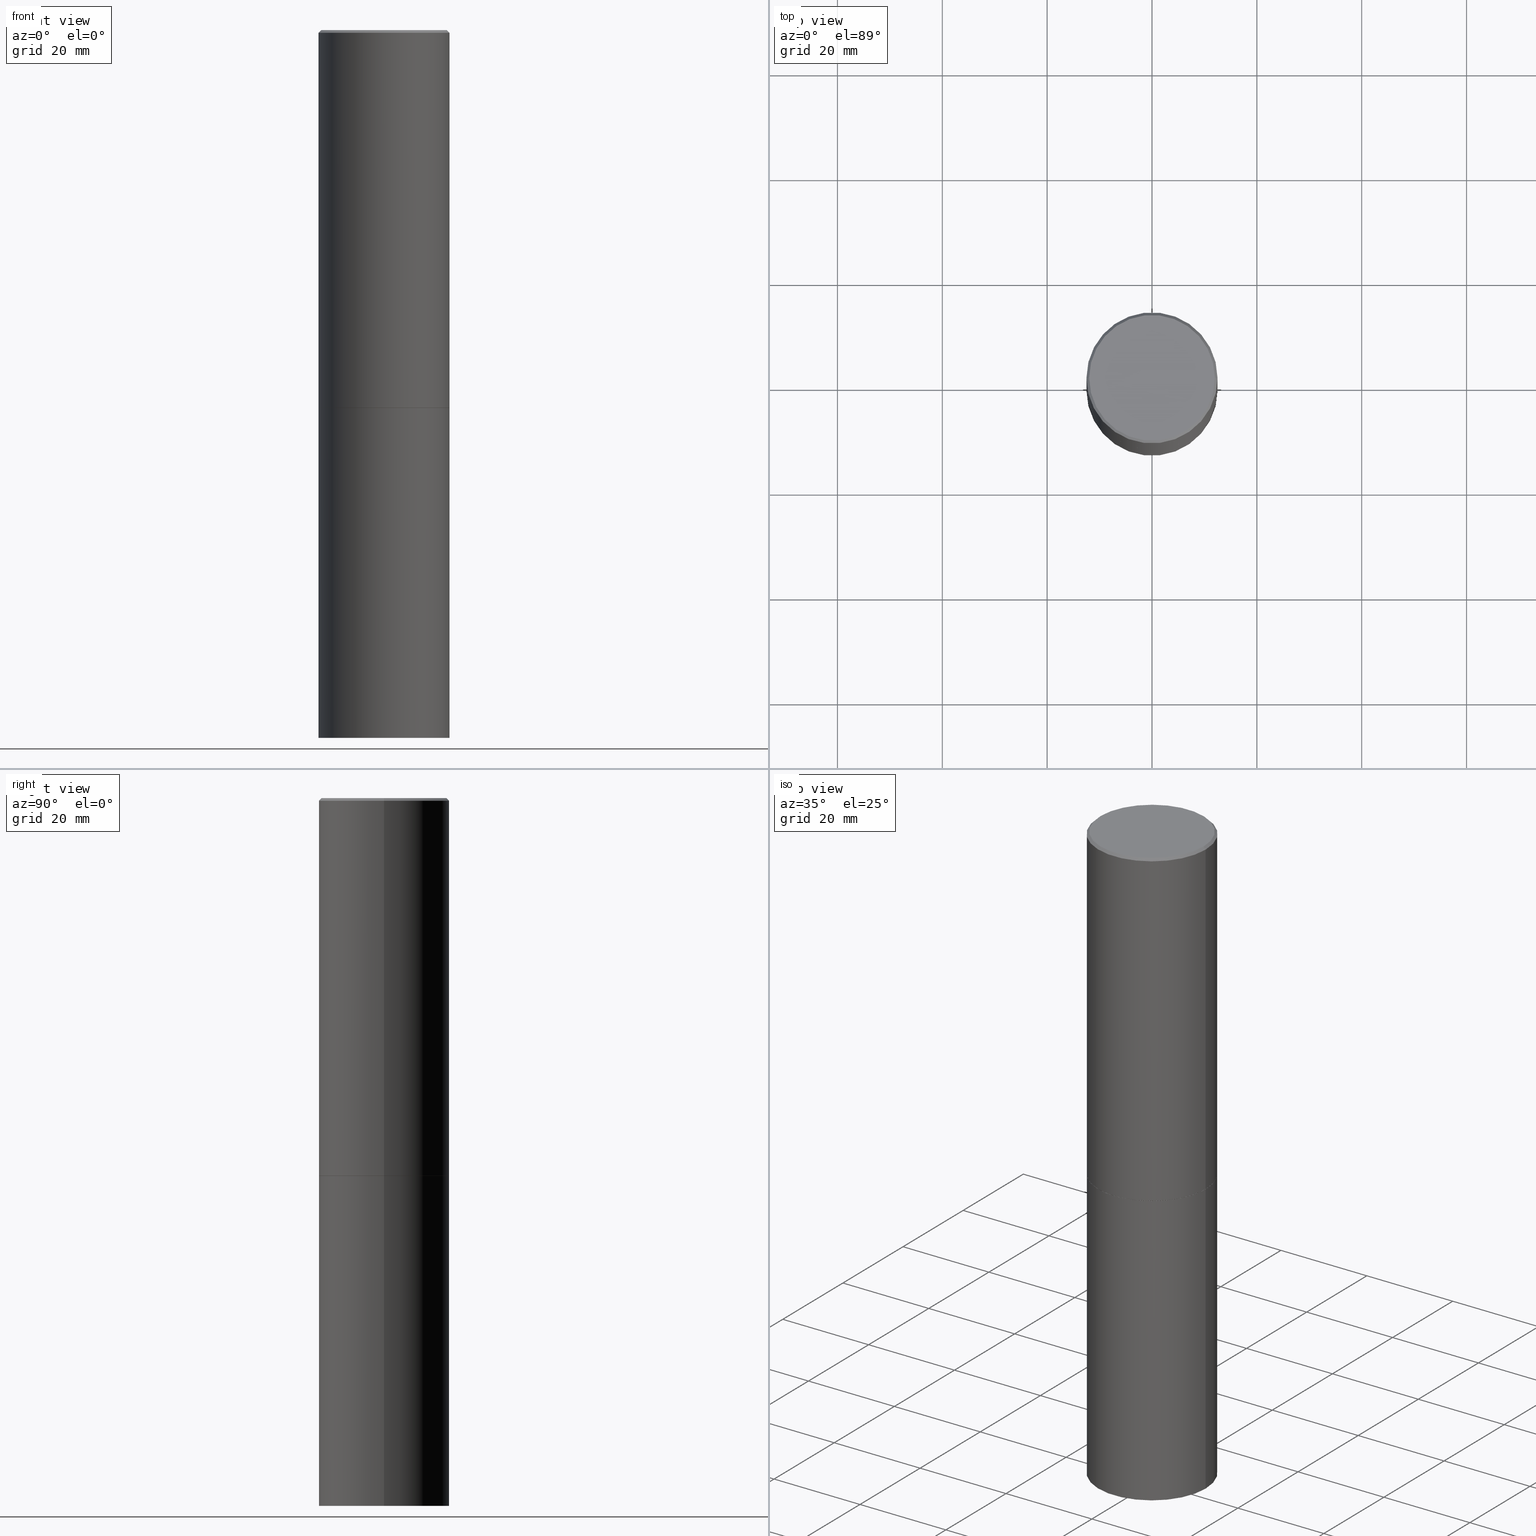
[diagram: canonical four-view strip — front | top / right | iso, engineering-drawing reading convention]
A machine part, canonical four-view strip (front | top / right | iso — engineering-drawing reading convention). The complete STEP part file that produces these views, byte-faithful:
ISO-10303-21;
HEADER;
FILE_DESCRIPTION (( 'STEP AP203' ),
    '1' );
FILE_NAME ('74864.STEP',
    '2024-05-03T15:04:18',
    ( '' ),
    ( '' ),
    'SwSTEP 2.0',
    'SolidWorks 2023',
    '' );
FILE_SCHEMA (( 'CONFIG_CONTROL_DESIGN' ));
ENDSEC;

DATA;
#1 = DIRECTION ( 'NONE',  ( 1.000000000000000000, -6.982962677686268288E-15, 0.000000000000000000 ) ) ;
#2 = VECTOR ( 'NONE', #210, 39.37007874015748143 ) ;
#3 = APPROVAL_STATUS ( 'not_yet_approved' ) ;
#4 = ORIENTED_EDGE ( 'NONE', *, *, #84, .F. ) ;
#5 = EDGE_CURVE ( 'NONE', #151, #324, #256, .T. ) ;
#6 = ORIENTED_EDGE ( 'NONE', *, *, #252, .F. ) ;
#7 = CIRCLE ( 'NONE', #221, 0.4921499999999999764 ) ;
#8 = LOCAL_TIME ( 11, 4, 18.00000000000000000, #283 ) ;
#9 = CARTESIAN_POINT ( 'NONE',  ( -0.4921499999999999764, -1.073032665954166075E-14, -5.315000000000000391 ) ) ;
#10 = APPROVAL_ROLE ( '' ) ;
#11 = DIRECTION ( 'NONE',  ( 1.000000000000000000, -6.982962677686265922E-15, 0.000000000000000000 ) ) ;
#12 = DIRECTION ( 'NONE',  ( -1.000000000000000000, 6.982962677686265922E-15, -4.876176775795935793E-29 ) ) ;
#13 = VERTEX_POINT ( 'NONE', #166 ) ;
#14 = CIRCLE ( 'NONE', #59, 0.4911499999999999755 ) ;
#15 = CC_DESIGN_APPROVAL ( #144, ( #76 ) ) ;
#16 = DIMENSIONAL_EXPONENTS ( 1.000000000000000000, 0.000000000000000000, 0.000000000000000000, 0.000000000000000000, 0.000000000000000000, 0.000000000000000000, 0.000000000000000000 ) ;
#17 = EDGE_CURVE ( 'NONE', #19, #57, #228, .T. ) ;
#18 = DIRECTION ( 'NONE',  ( -2.445468806185136597E-29, 3.491481338843145583E-15, 1.000000000000000000 ) ) ;
#19 = VERTEX_POINT ( 'NONE', #197 ) ;
#20 =( LENGTH_UNIT ( ) NAMED_UNIT ( * ) SI_UNIT ( $, .METRE. ) );
#21 = ORIENTED_EDGE ( 'NONE', *, *, #237, .F. ) ;
#22 = VECTOR ( 'NONE', #207, 39.37007874015748143 ) ;
#23 = DIRECTION ( 'NONE',  ( 1.000000000000000000, -6.982962677686265922E-15, 4.876176775795935793E-29 ) ) ;
#24 = CYLINDRICAL_SURFACE ( 'NONE', #138, 0.4921499999999999764 ) ;
#25 = ORIENTED_EDGE ( 'NONE', *, *, #360, .F. ) ;
#26 = FACE_OUTER_BOUND ( 'NONE', #290, .T. ) ;
#27 = PERSON_AND_ORGANIZATION_ROLE ( 'design_supplier' ) ;
#28 = CLOSED_SHELL ( 'NONE', ( #194, #202, #278, #97, #131, #301, #294, #168 ) ) ;
#29 = CC_DESIGN_APPROVAL ( #115, ( #48 ) ) ;
#30 = CC_DESIGN_DATE_AND_TIME_ASSIGNMENT ( #165, #302, ( #48 ) ) ;
#31 = CARTESIAN_POINT ( 'NONE',  ( -0.4911499999999999755, -6.402173050184711684E-15, -2.834699999999999775 ) ) ;
#32 = PERSON_AND_ORGANIZATION_ROLE ( 'design_owner' ) ;
#33 = CARTESIAN_POINT ( 'NONE',  ( 6.932170424893005181E-29, -9.897302151218664397E-15, -2.834699999999999775 ) ) ;
#34 = PERSON_AND_ORGANIZATION_ROLE ( 'creator' ) ;
#35 = EDGE_CURVE ( 'NONE', #253, #324, #167, .T. ) ;
#36 = VERTEX_POINT ( 'NONE', #87 ) ;
#37 = VECTOR ( 'NONE', #116, 39.37007874015748143 ) ;
#38 = CALENDAR_DATE ( 2024, 3, 5 ) ;
#39 = ORIENTED_EDGE ( 'NONE', *, *, #61, .F. ) ;
#40 = CALENDAR_DATE ( 2024, 3, 5 ) ;
#41 = FACE_OUTER_BOUND ( 'NONE', #242, .T. ) ;
#42 = DIRECTION ( 'NONE',  ( 1.000000000000000000, -6.982962677686265922E-15, 4.876176775795935793E-29 ) ) ;
#43 = ORIENTED_EDGE ( 'NONE', *, *, #360, .T. ) ;
#44 = FACE_OUTER_BOUND ( 'NONE', #55, .T. ) ;
#45 = CIRCLE ( 'NONE', #170, 0.4921499999999999764 ) ;
#46 = DIRECTION ( 'NONE',  ( 1.000000000000000000, -6.982962677686265922E-15, 4.876176775795935793E-29 ) ) ;
#47 = LOCAL_TIME ( 11, 4, 18.00000000000000000, #66 ) ;
#48 = PRODUCT_DEFINITION ( 'UNKNOWN', '', #76, #206 ) ;
#49 = DIRECTION ( 'NONE',  ( -1.000000000000000000, 6.982962677686265922E-15, -4.876176775795935793E-29 ) ) ;
#50 = ORIENTED_EDGE ( 'NONE', *, *, #119, .F. ) ;
#51 = FACE_OUTER_BOUND ( 'NONE', #154, .T. ) ;
#52 = EDGE_CURVE ( 'NONE', #236, #253, #229, .T. ) ;
#53 =( NAMED_UNIT ( * ) SI_UNIT ( $, .STERADIAN. ) SOLID_ANGLE_UNIT ( ) );
#54 = CIRCLE ( 'NONE', #200, 0.4921499999999999764 ) ;
#55 = EDGE_LOOP ( 'NONE', ( #6, #271, #354, #77 ) ) ;
#56 =( CONVERSION_BASED_UNIT ( 'INCH', #319 ) LENGTH_UNIT ( ) NAMED_UNIT ( #16 ) );
#57 = VERTEX_POINT ( 'NONE', #9 ) ;
#58 = EDGE_CURVE ( 'NONE', #331, #71, #312, .T. ) ;
#59 = AXIS2_PLACEMENT_3D ( 'NONE', #247, #188, #298 ) ;
#60 = DIRECTION ( 'NONE',  ( 1.000000000000000000, -6.982962677686265922E-15, 4.876006802227162976E-29 ) ) ;
#61 = EDGE_CURVE ( 'NONE', #324, #253, #95, .T. ) ;
#62 = PERSON_AND_ORGANIZATION ( #322, #186 ) ;
#63 = CARTESIAN_POINT ( 'NONE',  ( 4.890937612370296805E-31, -6.982962677686323656E-17, -0.02000000000000009409 ) ) ;
#64 = VECTOR ( 'NONE', #169, 39.37007874015748143 ) ;
#65 = ORIENTED_EDGE ( 'NONE', *, *, #158, .T. ) ;
#66 = COORDINATED_UNIVERSAL_TIME_OFFSET ( 5, 0, .BEHIND. ) ;
#67 = CC_DESIGN_DATE_AND_TIME_ASSIGNMENT ( #288, #260, ( #315 ) ) ;
#68 = DIRECTION ( 'NONE',  ( -2.445468806185136877E-29, 3.491481338843145188E-15, 1.000000000000000000 ) ) ;
#69 = APPROVAL_DATE_TIME ( #117, #239 ) ;
#70 = CARTESIAN_POINT ( 'NONE',  ( 0.4921499999999996988, -3.446223716380120377E-15, -0.02000000000000009409 ) ) ;
#71 = VERTEX_POINT ( 'NONE', #203 ) ;
#72 = DIRECTION ( 'NONE',  ( 2.445468806185136597E-29, -3.491481338843145583E-15, -1.000000000000000000 ) ) ;
#73 = EDGE_LOOP ( 'NONE', ( #4, #218, #274, #262 ) ) ;
#74 = ORIENTED_EDGE ( 'NONE', *, *, #198, .T. ) ;
#75 = AXIS2_PLACEMENT_3D ( 'NONE', #295, #326, #124 ) ;
#76 = PRODUCT_DEFINITION_FORMATION_WITH_SPECIFIED_SOURCE ( 'ANY', '', #172, .NOT_KNOWN. ) ;
#77 = ORIENTED_EDGE ( 'NONE', *, *, #61, .T. ) ;
#78 = DIRECTION ( 'NONE',  ( -2.445468806185136877E-29, 3.491481338843145188E-15, 1.000000000000000000 ) ) ;
#79 = ORIENTED_EDGE ( 'NONE', *, *, #5, .F. ) ;
#80 = DIRECTION ( 'NONE',  ( -2.445468806185136597E-29, 3.491481338843145583E-15, 1.000000000000000000 ) ) ;
#81 = EDGE_LOOP ( 'NONE', ( #209, #121, #292, #343 ) ) ;
#82 = DIRECTION ( 'NONE',  ( -2.445468806185136597E-29, 3.491481338843145583E-15, 1.000000000000000000 ) ) ;
#83 = ORIENTED_EDGE ( 'NONE', *, *, #52, .F. ) ;
#84 = EDGE_CURVE ( 'NONE', #57, #36, #171, .T. ) ;
#85 = DIRECTION ( 'NONE',  ( -2.445468806185136597E-29, 3.491481338843145583E-15, 1.000000000000000000 ) ) ;
#86 = AXIS2_PLACEMENT_3D ( 'NONE', #175, #267, #60 ) ;
#87 = CARTESIAN_POINT ( 'NONE',  ( -0.4921499999999999764, -1.073032665954166075E-14, -2.834700000000000220 ) ) ;
#88 = DATE_AND_TIME ( #105, #96 ) ;
#89 = AXIS2_PLACEMENT_3D ( 'NONE', #63, #142, #347 ) ;
#90 = CARTESIAN_POINT ( 'NONE',  ( 1.299766670487400218E-28, -1.855722331595131973E-14, -5.315000000000000391 ) ) ;
#91 = ORIENTED_EDGE ( 'NONE', *, *, #306, .F. ) ;
#92 = CC_DESIGN_PERSON_AND_ORGANIZATION_ASSIGNMENT ( #62, #34, ( #76 ) ) ;
#93 = DIRECTION ( 'NONE',  ( 1.000000000000000000, -6.982962677686265922E-15, 0.000000000000000000 ) ) ;
#94 = APPROVAL_STATUS ( 'not_yet_approved' ) ;
#95 = CIRCLE ( 'NONE', #268, 0.4921499999999996988 ) ;
#96 = LOCAL_TIME ( 11, 4, 18.00000000000000000, #112 ) ;
#97 = ADVANCED_FACE ( 'NONE', ( #44 ), #191, .T. ) ;
#98 = CARTESIAN_POINT ( 'NONE',  ( 3.297005828269567997E-15, 0.4721499999999996255, -1.644234401644689488E-15 ) ) ;
#99 = DIRECTION ( 'NONE',  ( 2.438088387897960049E-29, -3.491481338843145188E-15, -1.000000000000000000 ) ) ;
#100 = CARTESIAN_POINT ( 'NONE',  ( 6.932170424893007423E-29, -9.897302151218665974E-15, -2.834700000000000220 ) ) ;
#101 = CIRCLE ( 'NONE', #86, 0.4721499999999996255 ) ;
#102 = AXIS2_PLACEMENT_3D ( 'NONE', #305, #342, #11 ) ;
#103 = DIRECTION ( 'NONE',  ( -2.445468806185136597E-29, 3.491481338843145583E-15, 1.000000000000000000 ) ) ;
#104 = LINE ( 'NONE', #353, #113 ) ;
#105 = CALENDAR_DATE ( 2024, 3, 5 ) ;
#106 = CC_DESIGN_PERSON_AND_ORGANIZATION_ASSIGNMENT ( #136, #32, ( #172 ) ) ;
#107 = PERSON_AND_ORGANIZATION_ROLE ( 'classification_officer' ) ;
#108 = DIRECTION ( 'NONE',  ( 1.000000000000000000, -6.982962677686268288E-15, 0.000000000000000000 ) ) ;
#109 = EDGE_CURVE ( 'NONE', #36, #182, #45, .T. ) ;
#110 = AXIS2_PLACEMENT_3D ( 'NONE', #332, #80, #366 ) ;
#111 = FACE_OUTER_BOUND ( 'NONE', #73, .T. ) ;
#112 = COORDINATED_UNIVERSAL_TIME_OFFSET ( 5, 0, .BEHIND. ) ;
#113 = VECTOR ( 'NONE', #235, 39.37007874015748143 ) ;
#114 = CARTESIAN_POINT ( 'NONE',  ( -0.4921499999999996988, 3.366835455046430506E-15, -0.02000000000000009409 ) ) ;
#115 = APPROVAL ( #192, 'UNSPECIFIED' ) ;
#116 = DIRECTION ( 'NONE',  ( -0.7071067811870063169, 7.493145998872012346E-15, 0.7071067811860887176 ) ) ;
#117 = DATE_AND_TIME ( #40, #8 ) ;
#118 = FACE_OUTER_BOUND ( 'NONE', #150, .T. ) ;
#119 = EDGE_CURVE ( 'NONE', #71, #236, #54, .T. ) ;
#120 = AXIS2_PLACEMENT_3D ( 'NONE', #309, #143, #259 ) ;
#121 = ORIENTED_EDGE ( 'NONE', *, *, #84, .T. ) ;
#122 = CYLINDRICAL_SURFACE ( 'NONE', #234, 0.4921499999999998098 ) ;
#123 = FACE_OUTER_BOUND ( 'NONE', #276, .T. ) ;
#124 = DIRECTION ( 'NONE',  ( 1.000000000000000000, -6.982962677686265922E-15, 4.876006802227162976E-29 ) ) ;
#125 = AXIS2_PLACEMENT_3D ( 'NONE', #137, #208, #264 ) ;
#126 = CC_DESIGN_PERSON_AND_ORGANIZATION_ASSIGNMENT ( #365, #107, ( #315 ) ) ;
#127 = ORIENTED_EDGE ( 'NONE', *, *, #109, .T. ) ;
#128 = APPLICATION_PROTOCOL_DEFINITION ( 'international standard', 'config_control_design', 1994, #345 ) ;
#129 = ORIENTED_EDGE ( 'NONE', *, *, #181, .T. ) ;
#130 = DIRECTION ( 'NONE',  ( 1.000000000000000000, -6.982962677686268288E-15, 0.000000000000000000 ) ) ;
#131 = ADVANCED_FACE ( 'NONE', ( #123 ), #122, .T. ) ;
#132 = CARTESIAN_POINT ( 'NONE',  ( 3.436665081823425939E-15, 0.4921499999999813801, -5.315000000000003055 ) ) ;
#133 = CONICAL_SURFACE ( 'NONE', #338, 0.4911499999999999755, 0.7853981633980972044 ) ;
#134 = CARTESIAN_POINT ( 'NONE',  ( 6.932170424893005181E-29, -9.897302151218664397E-15, -2.834699999999999775 ) ) ;
#135 = FACE_OUTER_BOUND ( 'NONE', #81, .T. ) ;
#136 = PERSON_AND_ORGANIZATION ( #322, #186 ) ;
#137 = CARTESIAN_POINT ( 'NONE',  ( 3.436665081823365196E-15, 0.4921499999999900399, -2.834700000000001996 ) ) ;
#138 = AXIS2_PLACEMENT_3D ( 'NONE', #254, #82, #23 ) ;
#139 = LOCAL_TIME ( 11, 4, 18.00000000000000000, #310 ) ;
#140 = DIRECTION ( 'NONE',  ( -2.445468806185136597E-29, 3.491481338843145583E-15, 1.000000000000000000 ) ) ;
#141 = PERSON_AND_ORGANIZATION ( #322, #186 ) ;
#142 = DIRECTION ( 'NONE',  ( 2.445468806185136597E-29, -3.491481338843145583E-15, -1.000000000000000000 ) ) ;
#143 = DIRECTION ( 'NONE',  ( -2.445468806185136597E-29, 3.491481338843145583E-15, 1.000000000000000000 ) ) ;
#144 = APPROVAL ( #3, 'UNSPECIFIED' ) ;
#145 = AXIS2_PLACEMENT_3D ( 'NONE', #321, #72, #318 ) ;
#146 = EDGE_LOOP ( 'NONE', ( #65, #328 ) ) ;
#147 = DIRECTION ( 'NONE',  ( -2.445468806185136597E-29, 3.491481338843145583E-15, 1.000000000000000000 ) ) ;
#148 = EDGE_CURVE ( 'NONE', #19, #182, #355, .T. ) ;
#149 = ORIENTED_EDGE ( 'NONE', *, *, #306, .T. ) ;
#150 = EDGE_LOOP ( 'NONE', ( #74, #127 ) ) ;
#151 = VERTEX_POINT ( 'NONE', #178 ) ;
#152 = CC_DESIGN_PERSON_AND_ORGANIZATION_ASSIGNMENT ( #341, #215, ( #48 ) ) ;
#153 = CARTESIAN_POINT ( 'NONE',  ( 6.929724956086824062E-29, -9.893810669879824545E-15, -2.833700000000000774 ) ) ;
#154 = EDGE_LOOP ( 'NONE', ( #149, #43, #361, #83 ) ) ;
#155 = CYLINDRICAL_SURFACE ( 'NONE', #273, 0.4921499999999999764 ) ;
#156 = DIRECTION ( 'NONE',  ( 1.000000000000000000, -6.982962677686265922E-15, 0.000000000000000000 ) ) ;
#157 = VERTEX_POINT ( 'NONE', #232 ) ;
#158 = EDGE_CURVE ( 'NONE', #151, #13, #356, .T. ) ;
#159 = ORIENTED_EDGE ( 'NONE', *, *, #252, .T. ) ;
#160 = PERSON_AND_ORGANIZATION ( #322, #186 ) ;
#161 = CALENDAR_DATE ( 2024, 3, 5 ) ;
#162 = CIRCLE ( 'NONE', #110, 0.4921499999999999764 ) ;
#163 = CARTESIAN_POINT ( 'NONE',  ( -0.4921499999999996988, 3.366835455046430506E-15, -0.02000000000000009409 ) ) ;
#164 = EDGE_CURVE ( 'NONE', #157, #236, #104, .T. ) ;
#165 = DATE_AND_TIME ( #307, #193 ) ;
#166 = CARTESIAN_POINT ( 'NONE',  ( 0.4721499999999996255, -3.342703923013973396E-15, 8.537024980224040028E-18 ) ) ;
#167 = CIRCLE ( 'NONE', #120, 0.4921499999999996988 ) ;
#168 = ADVANCED_FACE ( 'NONE', ( #174 ), #287, .F. ) ;
#169 = DIRECTION ( 'NONE',  ( -0.7071067811865467956, 2.468850131082249172E-15, -0.7071067811865482389 ) ) ;
#170 = AXIS2_PLACEMENT_3D ( 'NONE', #100, #18, #329 ) ;
#171 = LINE ( 'NONE', #285, #22 ) ;
#172 = PRODUCT ( '74864', '74864', '', ( #177 ) ) ;
#173 = PLANE ( 'NONE',  #125 ) ;
#174 = FACE_OUTER_BOUND ( 'NONE', #146, .T. ) ;
#175 = CARTESIAN_POINT ( 'NONE',  ( -2.087702828670439639E-46, 2.980686340760894400E-32, 8.537024980200822558E-18 ) ) ;
#176 = EDGE_LOOP ( 'NONE', ( #240, #21 ) ) ;
#177 = MECHANICAL_CONTEXT ( 'NONE', #345, 'mechanical' ) ;
#178 = CARTESIAN_POINT ( 'NONE',  ( -0.4721499999999996255, 3.331920641657999252E-15, 8.537024980177643606E-18 ) ) ;
#179 = CIRCLE ( 'NONE', #102, 0.4921499999999999764 ) ;
#180 = AXIS2_PLACEMENT_3D ( 'NONE', #330, #187, #270 ) ;
#181 = EDGE_CURVE ( 'NONE', #157, #331, #325, .T. ) ;
#182 = VERTEX_POINT ( 'NONE', #213 ) ;
#183 = CARTESIAN_POINT ( 'NONE',  ( 0.4921499999999999764, -3.436665081823295777E-15, 2.399810400207969603E-29 ) ) ;
#184 = EDGE_LOOP ( 'NONE', ( #320, #340, #351, #50 ) ) ;
#185 = EDGE_CURVE ( 'NONE', #57, #19, #162, .T. ) ;
#186 = ORGANIZATION ( 'UNSPECIFIED', 'UNSPECIFIED', '' ) ;
#187 = DIRECTION ( 'NONE',  ( 0.000000000000000000, 0.000000000000000000, 1.000000000000000000 ) ) ;
#188 = DIRECTION ( 'NONE',  ( -2.445468806185136597E-29, 3.491481338843145583E-15, 1.000000000000000000 ) ) ;
#189 = COORDINATED_UNIVERSAL_TIME_OFFSET ( 5, 0, .BEHIND. ) ;
#190 = APPROVAL_DATE_TIME ( #88, #115 ) ;
#191 = CONICAL_SURFACE ( 'NONE', #145, 0.4921499999999996988, 0.7853981633974472798 ) ;
#192 = APPROVAL_STATUS ( 'not_yet_approved' ) ;
#193 = LOCAL_TIME ( 11, 4, 18.00000000000000000, #189 ) ;
#194 = ADVANCED_FACE ( 'NONE', ( #275 ), #133, .T. ) ;
#195 = APPLICATION_PROTOCOL_DEFINITION ( 'international standard', 'config_control_design', 1994, #204 ) ;
#196 = FACE_OUTER_BOUND ( 'NONE', #184, .T. ) ;
#197 = CARTESIAN_POINT ( 'NONE',  ( 0.4921499999999999764, -2.199388839777461709E-14, -5.315000000000000391 ) ) ;
#198 = EDGE_CURVE ( 'NONE', #182, #36, #7, .T. ) ;
#199 = PERSON_AND_ORGANIZATION ( #322, #186 ) ;
#200 = AXIS2_PLACEMENT_3D ( 'NONE', #153, #269, #272 ) ;
#201 = CARTESIAN_POINT ( 'NONE',  ( 0.4921499999999998098, -3.436665081823294593E-15, 2.399810400207968762E-29 ) ) ;
#202 = ADVANCED_FACE ( 'NONE', ( #51 ), #334, .T. ) ;
#203 = CARTESIAN_POINT ( 'NONE',  ( -0.4921499999999999764, -1.484884074285010433E-15, -2.833700000000000774 ) ) ;
#204 = APPLICATION_CONTEXT ( 'configuration controlled 3d designs of mechanical parts and assemblies' ) ;
#205 = AXIS2_PLACEMENT_3D ( 'NONE', #98, #99, #49 ) ;
#206 = DESIGN_CONTEXT ( 'detailed design', #204, 'design' ) ;
#207 = DIRECTION ( 'NONE',  ( -2.445468806185136877E-29, 3.491481338843145188E-15, 1.000000000000000000 ) ) ;
#208 = DIRECTION ( 'NONE',  ( 2.438088387897960049E-29, -3.491481338843145188E-15, -1.000000000000000000 ) ) ;
#209 = ORIENTED_EDGE ( 'NONE', *, *, #17, .T. ) ;
#210 = DIRECTION ( 'NONE',  ( -2.445468806185136877E-29, 3.491481338843145188E-15, 1.000000000000000000 ) ) ;
#211 = AXIS2_PLACEMENT_3D ( 'NONE', #280, #217, #297 ) ;
#212 = CARTESIAN_POINT ( 'NONE',  ( 0.4921499999999999764, -1.333047575170312032E-14, -2.833700000000000774 ) ) ;
#213 = CARTESIAN_POINT ( 'NONE',  ( 0.4921499999999999764, -1.333396723304196175E-14, -2.834700000000000220 ) ) ;
#214 = VECTOR ( 'NONE', #68, 39.37007874015748143 ) ;
#215 = PERSON_AND_ORGANIZATION_ROLE ( 'creator' ) ;
#216 = PLANE ( 'NONE',  #261 ) ;
#217 = DIRECTION ( 'NONE',  ( -2.445468806185136597E-29, 3.491481338843145583E-15, 1.000000000000000000 ) ) ;
#218 = ORIENTED_EDGE ( 'NONE', *, *, #185, .T. ) ;
#219 = ADVANCED_BREP_SHAPE_REPRESENTATION ( '74864', ( #230, #227, #180 ), #358 ) ;
#220 = CLOSED_SHELL ( 'NONE', ( #226, #245, #289, #348 ) ) ;
#221 = AXIS2_PLACEMENT_3D ( 'NONE', #303, #85, #156 ) ;
#222 = APPROVAL_PERSON_ORGANIZATION ( #199, #239, #10 ) ;
#223 = DIRECTION ( 'NONE',  ( 0.7071067811865467956, -7.319954787623254468E-15, -0.7071067811865482389 ) ) ;
#224 = DIRECTION ( 'NONE',  ( -2.445468806185136597E-29, 3.491481338843145583E-15, 1.000000000000000000 ) ) ;
#225 = DATE_AND_TIME ( #161, #139 ) ;
#226 = ADVANCED_FACE ( 'NONE', ( #135 ), #24, .T. ) ;
#227 = MANIFOLD_SOLID_BREP ( 'Body-Move/Copy2[2]', #28 ) ;
#228 = CIRCLE ( 'NONE', #362, 0.4921499999999999764 ) ;
#229 = LINE ( 'NONE', #201, #214 ) ;
#230 = MANIFOLD_SOLID_BREP ( 'Body-Move/Copy2[1]', #220 ) ;
#231 = CARTESIAN_POINT ( 'NONE',  ( 4.890937612370296805E-31, -6.982962677686323656E-17, -0.02000000000000009409 ) ) ;
#232 = CARTESIAN_POINT ( 'NONE',  ( 0.4911499999999999755, -1.332698427036427416E-14, -2.834699999999999775 ) ) ;
#233 = LINE ( 'NONE', #70, #311 ) ;
#234 = AXIS2_PLACEMENT_3D ( 'NONE', #266, #147, #238 ) ;
#235 = DIRECTION ( 'NONE',  ( 0.7071067811870063169, -2.468850131087062801E-15, 0.7071067811860887176 ) ) ;
#236 = VERTEX_POINT ( 'NONE', #212 ) ;
#237 = EDGE_CURVE ( 'NONE', #331, #157, #14, .T. ) ;
#238 = DIRECTION ( 'NONE',  ( 1.000000000000000000, -6.982962677686265922E-15, 4.876176775795935793E-29 ) ) ;
#239 = APPROVAL ( #94, 'UNSPECIFIED' ) ;
#240 = ORIENTED_EDGE ( 'NONE', *, *, #181, .F. ) ;
#241 = CARTESIAN_POINT ( 'NONE',  ( 0.000000000000000000, 0.000000000000000000, 0.000000000000000000 ) ) ;
#242 = EDGE_LOOP ( 'NONE', ( #265, #159, #336, #79 ) ) ;
#243 = AXIS2_PLACEMENT_3D ( 'NONE', #350, #308, #42 ) ;
#244 = LINE ( 'NONE', #249, #284 ) ;
#245 = ADVANCED_FACE ( 'NONE', ( #26 ), #216, .T. ) ;
#246 = DIRECTION ( 'NONE',  ( -2.445468806185136597E-29, 3.491481338843145583E-15, 1.000000000000000000 ) ) ;
#247 = CARTESIAN_POINT ( 'NONE',  ( 6.932170424893005181E-29, -9.897302151218664397E-15, -2.834699999999999775 ) ) ;
#248 = ORIENTED_EDGE ( 'NONE', *, *, #185, .F. ) ;
#249 = CARTESIAN_POINT ( 'NONE',  ( -0.4921499999999998098, 3.496936074043331714E-15, -2.420853904668950949E-29 ) ) ;
#250 = CONICAL_SURFACE ( 'NONE', #89, 0.4921499999999996988, 0.7853981633974472798 ) ;
#251 = SECURITY_CLASSIFICATION_LEVEL ( 'unclassified' ) ;
#252 = EDGE_CURVE ( 'NONE', #13, #253, #233, .T. ) ;
#253 = VERTEX_POINT ( 'NONE', #286 ) ;
#254 = CARTESIAN_POINT ( 'NONE',  ( 0.000000000000000000, 0.000000000000000000, 0.000000000000000000 ) ) ;
#255 = APPROVAL_ROLE ( '' ) ;
#256 = LINE ( 'NONE', #114, #64 ) ;
#257 = PERSON_AND_ORGANIZATION ( #322, #186 ) ;
#258 = APPROVAL_PERSON_ORGANIZATION ( #257, #144, #300 ) ;
#259 = DIRECTION ( 'NONE',  ( 1.000000000000000000, -6.982962677686265922E-15, 0.000000000000000000 ) ) ;
#260 = DATE_TIME_ROLE ( 'classification_date' ) ;
#261 = AXIS2_PLACEMENT_3D ( 'NONE', #132, #363, #12 ) ;
#262 = ORIENTED_EDGE ( 'NONE', *, *, #109, .F. ) ;
#263 = SHAPE_DEFINITION_REPRESENTATION ( #281, #219 ) ;
#264 = DIRECTION ( 'NONE',  ( -1.000000000000000000, 6.982962677686265922E-15, -4.876176775795935793E-29 ) ) ;
#265 = ORIENTED_EDGE ( 'NONE', *, *, #313, .F. ) ;
#266 = CARTESIAN_POINT ( 'NONE',  ( 0.000000000000000000, 0.000000000000000000, 0.000000000000000000 ) ) ;
#267 = DIRECTION ( 'NONE',  ( -2.445468806185136597E-29, 3.491481338843145583E-15, 1.000000000000000000 ) ) ;
#268 = AXIS2_PLACEMENT_3D ( 'NONE', #231, #346, #93 ) ;
#269 = DIRECTION ( 'NONE',  ( -2.445468806185136597E-29, 3.491481338843145583E-15, 1.000000000000000000 ) ) ;
#270 = DIRECTION ( 'NONE',  ( 1.000000000000000000, 0.000000000000000000, 0.000000000000000000 ) ) ;
#271 = ORIENTED_EDGE ( 'NONE', *, *, #158, .F. ) ;
#272 = DIRECTION ( 'NONE',  ( 1.000000000000000000, -6.982962677686265922E-15, 0.000000000000000000 ) ) ;
#273 = AXIS2_PLACEMENT_3D ( 'NONE', #241, #103, #46 ) ;
#274 = ORIENTED_EDGE ( 'NONE', *, *, #148, .T. ) ;
#275 = FACE_OUTER_BOUND ( 'NONE', #299, .T. ) ;
#276 = EDGE_LOOP ( 'NONE', ( #25, #352, #316, #39 ) ) ;
#277 = APPROVAL_DATE_TIME ( #225, #144 ) ;
#278 = ADVANCED_FACE ( 'NONE', ( #41 ), #250, .T. ) ;
#279 = DIRECTION ( 'NONE',  ( -2.445468806185136597E-29, 3.491481338843145583E-15, 1.000000000000000000 ) ) ;
#280 = CARTESIAN_POINT ( 'NONE',  ( 0.000000000000000000, 0.000000000000000000, 0.000000000000000000 ) ) ;
#281 = PRODUCT_DEFINITION_SHAPE ( 'NONE', 'NONE',  #48 ) ;
#282 = DIRECTION ( 'NONE',  ( 1.000000000000000000, -6.982962677686265922E-15, 0.000000000000000000 ) ) ;
#283 = COORDINATED_UNIVERSAL_TIME_OFFSET ( 5, 0, .BEHIND. ) ;
#284 = VECTOR ( 'NONE', #78, 39.37007874015748143 ) ;
#285 = CARTESIAN_POINT ( 'NONE',  ( -0.4921499999999999764, 3.496936074043332897E-15, -2.420853904668951509E-29 ) ) ;
#286 = CARTESIAN_POINT ( 'NONE',  ( 0.4921499999999996988, -3.446223716380120377E-15, -0.02000000000000009409 ) ) ;
#287 = PLANE ( 'NONE',  #205 ) ;
#288 = DATE_AND_TIME ( #38, #47 ) ;
#289 = ADVANCED_FACE ( 'NONE', ( #118 ), #173, .F. ) ;
#290 = EDGE_LOOP ( 'NONE', ( #293, #248 ) ) ;
#291 = CONICAL_SURFACE ( 'NONE', #304, 0.4911499999999999755, 0.7853981633980972044 ) ;
#292 = ORIENTED_EDGE ( 'NONE', *, *, #198, .F. ) ;
#293 = ORIENTED_EDGE ( 'NONE', *, *, #17, .F. ) ;
#294 = ADVANCED_FACE ( 'NONE', ( #317 ), #314, .F. ) ;
#295 = CARTESIAN_POINT ( 'NONE',  ( -2.087702828670439639E-46, 2.980686340760894400E-32, 8.537024980200822558E-18 ) ) ;
#296 = AXIS2_PLACEMENT_3D ( 'NONE', #134, #279, #130 ) ;
#297 = DIRECTION ( 'NONE',  ( 1.000000000000000000, -6.982962677686265922E-15, 4.876176775795935793E-29 ) ) ;
#298 = DIRECTION ( 'NONE',  ( 1.000000000000000000, -6.982962677686268288E-15, 0.000000000000000000 ) ) ;
#299 = EDGE_LOOP ( 'NONE', ( #129, #357, #91, #333 ) ) ;
#300 = APPROVAL_ROLE ( '' ) ;
#301 = ADVANCED_FACE ( 'NONE', ( #196 ), #291, .T. ) ;
#302 = DATE_TIME_ROLE ( 'creation_date' ) ;
#303 = CARTESIAN_POINT ( 'NONE',  ( 6.932170424893007423E-29, -9.897302151218665974E-15, -2.834700000000000220 ) ) ;
#304 = AXIS2_PLACEMENT_3D ( 'NONE', #33, #140, #1 ) ;
#305 = CARTESIAN_POINT ( 'NONE',  ( 6.929724956086824062E-29, -9.893810669879824545E-15, -2.833700000000000774 ) ) ;
#306 = EDGE_CURVE ( 'NONE', #236, #71, #179, .T. ) ;
#307 = CALENDAR_DATE ( 2024, 3, 5 ) ;
#308 = DIRECTION ( 'NONE',  ( -2.438088387897960049E-29, 3.491481338843145188E-15, 1.000000000000000000 ) ) ;
#309 = CARTESIAN_POINT ( 'NONE',  ( 4.890937612370296805E-31, -6.982962677686323656E-17, -0.02000000000000009409 ) ) ;
#310 = COORDINATED_UNIVERSAL_TIME_OFFSET ( 5, 0, .BEHIND. ) ;
#311 = VECTOR ( 'NONE', #223, 39.37007874015748143 ) ;
#312 = LINE ( 'NONE', #344, #37 ) ;
#313 = EDGE_CURVE ( 'NONE', #13, #151, #101, .T. ) ;
#314 = PLANE ( 'NONE',  #243 ) ;
#315 = SECURITY_CLASSIFICATION ( '', '', #251 ) ;
#316 = ORIENTED_EDGE ( 'NONE', *, *, #52, .T. ) ;
#317 = FACE_OUTER_BOUND ( 'NONE', #176, .T. ) ;
#318 = DIRECTION ( 'NONE',  ( -1.000000000000000000, 6.982962677686265922E-15, 0.000000000000000000 ) ) ;
#319 = LENGTH_MEASURE_WITH_UNIT ( LENGTH_MEASURE( 0.02539999999999999897 ), #20 );
#320 = ORIENTED_EDGE ( 'NONE', *, *, #58, .F. ) ;
#321 = CARTESIAN_POINT ( 'NONE',  ( 4.890937612370296805E-31, -6.982962677686323656E-17, -0.02000000000000009409 ) ) ;
#322 = PERSON ( 'UNSPECIFIED', 'UNSPECIFIED', 'UNSPECIFIED', ('UNSPECIFIED'), ('UNSPECIFIED'), ('UNSPECIFIED') ) ;
#323 =( NAMED_UNIT ( * ) PLANE_ANGLE_UNIT ( ) SI_UNIT ( $, .RADIAN. ) );
#324 = VERTEX_POINT ( 'NONE', #163 ) ;
#325 = CIRCLE ( 'NONE', #296, 0.4911499999999999755 ) ;
#326 = DIRECTION ( 'NONE',  ( -2.445468806185136597E-29, 3.491481338843145583E-15, 1.000000000000000000 ) ) ;
#327 = CC_DESIGN_PERSON_AND_ORGANIZATION_ASSIGNMENT ( #141, #27, ( #76 ) ) ;
#328 = ORIENTED_EDGE ( 'NONE', *, *, #313, .T. ) ;
#329 = DIRECTION ( 'NONE',  ( 1.000000000000000000, -6.982962677686265922E-15, 0.000000000000000000 ) ) ;
#330 = CARTESIAN_POINT ( 'NONE',  ( 0.000000000000000000, 0.000000000000000000, 0.000000000000000000 ) ) ;
#331 = VERTEX_POINT ( 'NONE', #31 ) ;
#332 = CARTESIAN_POINT ( 'NONE',  ( 1.299766670487400218E-28, -1.855722331595131973E-14, -5.315000000000000391 ) ) ;
#333 = ORIENTED_EDGE ( 'NONE', *, *, #164, .F. ) ;
#334 = CYLINDRICAL_SURFACE ( 'NONE', #211, 0.4921499999999998098 ) ;
#335 = PRODUCT_RELATED_PRODUCT_CATEGORY ( 'detail', '', ( #172 ) ) ;
#336 = ORIENTED_EDGE ( 'NONE', *, *, #35, .T. ) ;
#337 = CARTESIAN_POINT ( 'NONE',  ( 6.932170424893005181E-29, -9.897302151218664397E-15, -2.834699999999999775 ) ) ;
#338 = AXIS2_PLACEMENT_3D ( 'NONE', #337, #246, #108 ) ;
#339 = CC_DESIGN_SECURITY_CLASSIFICATION ( #315, ( #76 ) ) ;
#340 = ORIENTED_EDGE ( 'NONE', *, *, #237, .T. ) ;
#341 = PERSON_AND_ORGANIZATION ( #322, #186 ) ;
#342 = DIRECTION ( 'NONE',  ( -2.445468806185136597E-29, 3.491481338843145583E-15, 1.000000000000000000 ) ) ;
#343 = ORIENTED_EDGE ( 'NONE', *, *, #148, .F. ) ;
#344 = CARTESIAN_POINT ( 'NONE',  ( -0.4911499999999999755, -6.407471504532931719E-15, -2.834699999999999775 ) ) ;
#345 = APPLICATION_CONTEXT ( 'configuration controlled 3d designs of mechanical parts and assemblies' ) ;
#346 = DIRECTION ( 'NONE',  ( -2.445468806185136597E-29, 3.491481338843145583E-15, 1.000000000000000000 ) ) ;
#347 = DIRECTION ( 'NONE',  ( -1.000000000000000000, 6.982962677686265922E-15, 0.000000000000000000 ) ) ;
#348 = ADVANCED_FACE ( 'NONE', ( #111 ), #155, .T. ) ;
#349 = UNCERTAINTY_MEASURE_WITH_UNIT (LENGTH_MEASURE( 1.000000000000000082E-05 ), #56, 'distance_accuracy_value', 'NONE');
#350 = CARTESIAN_POINT ( 'NONE',  ( 6.932170424893007423E-29, -9.897302151218665974E-15, -2.834700000000000220 ) ) ;
#351 = ORIENTED_EDGE ( 'NONE', *, *, #164, .T. ) ;
#352 = ORIENTED_EDGE ( 'NONE', *, *, #119, .T. ) ;
#353 = CARTESIAN_POINT ( 'NONE',  ( 0.4911499999999999755, -1.332698427036427416E-14, -2.834699999999999775 ) ) ;
#354 = ORIENTED_EDGE ( 'NONE', *, *, #5, .T. ) ;
#355 = LINE ( 'NONE', #183, #2 ) ;
#356 = CIRCLE ( 'NONE', #75, 0.4721499999999996255 ) ;
#357 = ORIENTED_EDGE ( 'NONE', *, *, #58, .T. ) ;
#358 =( GEOMETRIC_REPRESENTATION_CONTEXT ( 3 ) GLOBAL_UNCERTAINTY_ASSIGNED_CONTEXT ( ( #349 ) ) GLOBAL_UNIT_ASSIGNED_CONTEXT ( ( #56, #323, #53 ) ) REPRESENTATION_CONTEXT ( 'NONE', 'WORKASPACE' ) );
#359 = APPROVAL_PERSON_ORGANIZATION ( #160, #115, #255 ) ;
#360 = EDGE_CURVE ( 'NONE', #71, #324, #244, .T. ) ;
#361 = ORIENTED_EDGE ( 'NONE', *, *, #35, .F. ) ;
#362 = AXIS2_PLACEMENT_3D ( 'NONE', #90, #224, #282 ) ;
#363 = DIRECTION ( 'NONE',  ( 2.438088387897960049E-29, -3.491481338843145188E-15, -1.000000000000000000 ) ) ;
#364 = CC_DESIGN_APPROVAL ( #239, ( #315 ) ) ;
#365 = PERSON_AND_ORGANIZATION ( #322, #186 ) ;
#366 = DIRECTION ( 'NONE',  ( 1.000000000000000000, -6.982962677686265922E-15, 0.000000000000000000 ) ) ;
ENDSEC;
END-ISO-10303-21;
